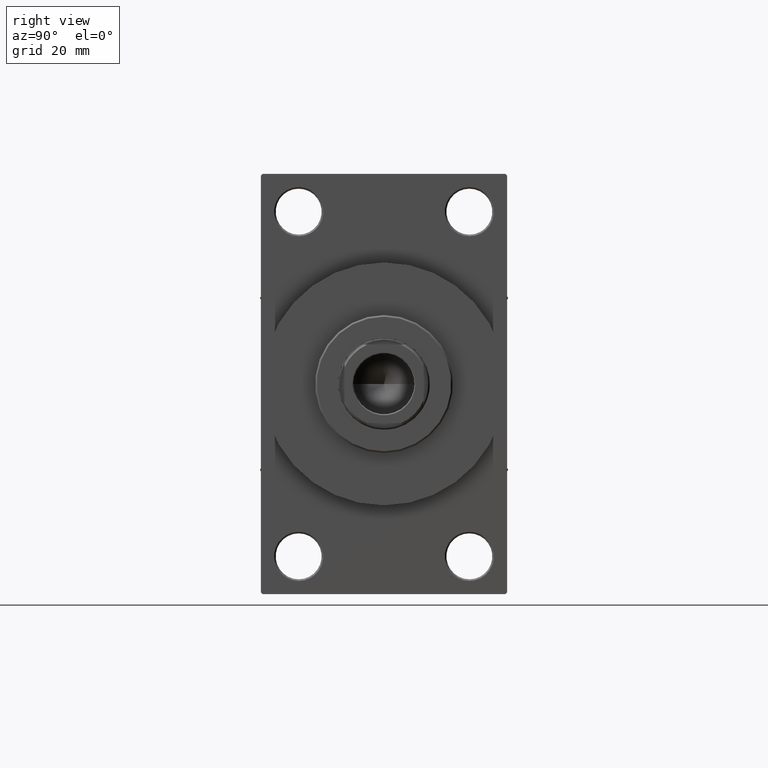
[diagram: clean part render]
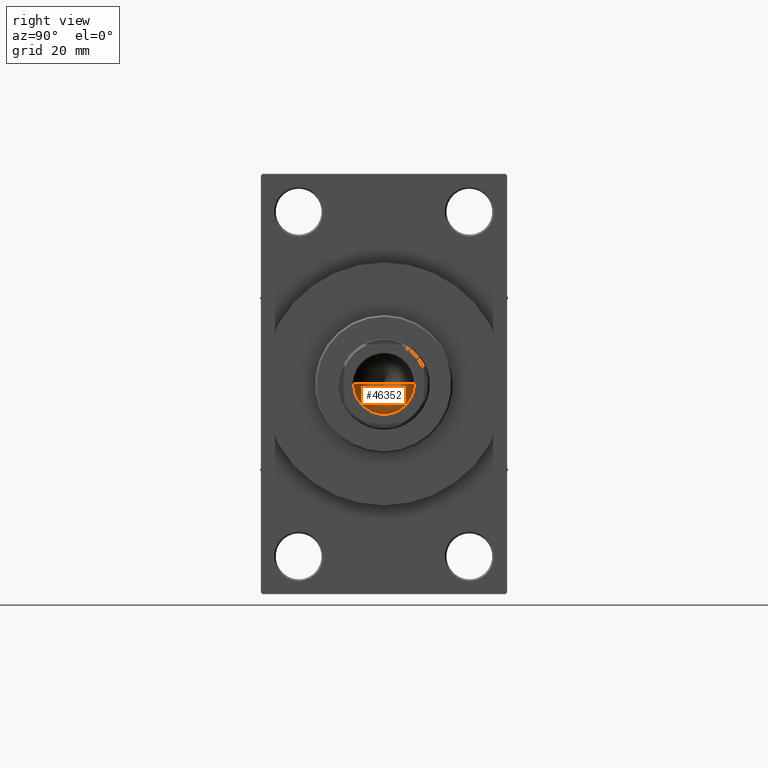
[diagram: same view with one face highlighted and labeled with its STEP entity id]
A machine part, right view. The second image highlights one B-rep face of the part: STEP entity #46352.
In plain terms, the highlighted conical surface has half-angle 59 deg.
Its self-contained STEP definition (entity closure, byte-faithful):
#1618 = CARTESIAN_POINT ( 'NONE',  ( 0.000000000000000000, 0.000000000000000000, 77.99999999999998579 ) ) ;
#2109 = CIRCLE ( 'NONE', #28796, 9.249999999999992895 ) ;
#6165 = DIRECTION ( 'NONE',  ( 1.000000000000000000, 0.000000000000000000, 0.000000000000000000 ) ) ;
#6553 = EDGE_LOOP ( 'NONE', ( #27310, #39580, #45750 ) ) ;
#12718 = EDGE_CURVE ( 'NONE', #29927, #15150, #44180, .T. ) ;
#14663 = CARTESIAN_POINT ( 'NONE',  ( -9.249999999999992895, 1.132798289211300712E-15, 77.99999999999998579 ) ) ;
#15150 = VERTEX_POINT ( 'NONE', #14663 ) ;
#17562 = VECTOR ( 'NONE', #34437, 1000.000000000000000 ) ;
#18831 = CONICAL_SURFACE ( 'NONE', #23396, 9.249999999999992895, 1.029744258676653423 ) ;
#20399 = DIRECTION ( 'NONE',  ( -0.000000000000000000, -0.000000000000000000, 1.000000000000000000 ) ) ;
#20637 = FACE_OUTER_BOUND ( 'NONE', #6553, .T. ) ;
#22444 = DIRECTION ( 'NONE',  ( -0.8571673007021117785, 1.049727191138617956E-16, 0.5150380749100550437 ) ) ;
#23209 = CARTESIAN_POINT ( 'NONE',  ( 9.249999999999992895, 0.000000000000000000, 77.99999999999998579 ) ) ;
#23396 = AXIS2_PLACEMENT_3D ( 'NONE', #45221, #20399, #41650 ) ;
#25857 = CARTESIAN_POINT ( 'NONE',  ( 9.249999999999992895, 0.000000000000000000, 77.99999999999998579 ) ) ;
#26398 = EDGE_CURVE ( 'NONE', #32595, #15150, #2109, .T. ) ;
#27310 = ORIENTED_EDGE ( 'NONE', *, *, #12718, .F. ) ;
#27881 = DIRECTION ( 'NONE',  ( -0.000000000000000000, -0.000000000000000000, 1.000000000000000000 ) ) ;
#28796 = AXIS2_PLACEMENT_3D ( 'NONE', #1618, #27881, #6165 ) ;
#29927 = VERTEX_POINT ( 'NONE', #31506 ) ;
#31506 = CARTESIAN_POINT ( 'NONE',  ( -9.769621978240258809E-15, 0.000000000000000000, 72.44203927399505005 ) ) ;
#32595 = VERTEX_POINT ( 'NONE', #25857 ) ;
#32747 = EDGE_CURVE ( 'NONE', #29927, #32595, #41360, .T. ) ;
#34437 = DIRECTION ( 'NONE',  ( 0.8571673007021117785, 0.000000000000000000, 0.5150380749100550437 ) ) ;
#39580 = ORIENTED_EDGE ( 'NONE', *, *, #32747, .T. ) ;
#41360 = LINE ( 'NONE', #23209, #17562 ) ;
#41650 = DIRECTION ( 'NONE',  ( 1.000000000000000000, 0.000000000000000000, 0.000000000000000000 ) ) ;
#44180 = LINE ( 'NONE', #44650, #44509 ) ;
#44509 = VECTOR ( 'NONE', #22444, 1000.000000000000000 ) ;
#44650 = CARTESIAN_POINT ( 'NONE',  ( -9.249999999999992895, 1.132798289211300712E-15, 77.99999999999998579 ) ) ;
#45221 = CARTESIAN_POINT ( 'NONE',  ( 0.000000000000000000, 0.000000000000000000, 77.99999999999998579 ) ) ;
#45750 = ORIENTED_EDGE ( 'NONE', *, *, #26398, .T. ) ;
#46352 = ADVANCED_FACE ( 'NONE', ( #20637 ), #18831, .F. ) ;